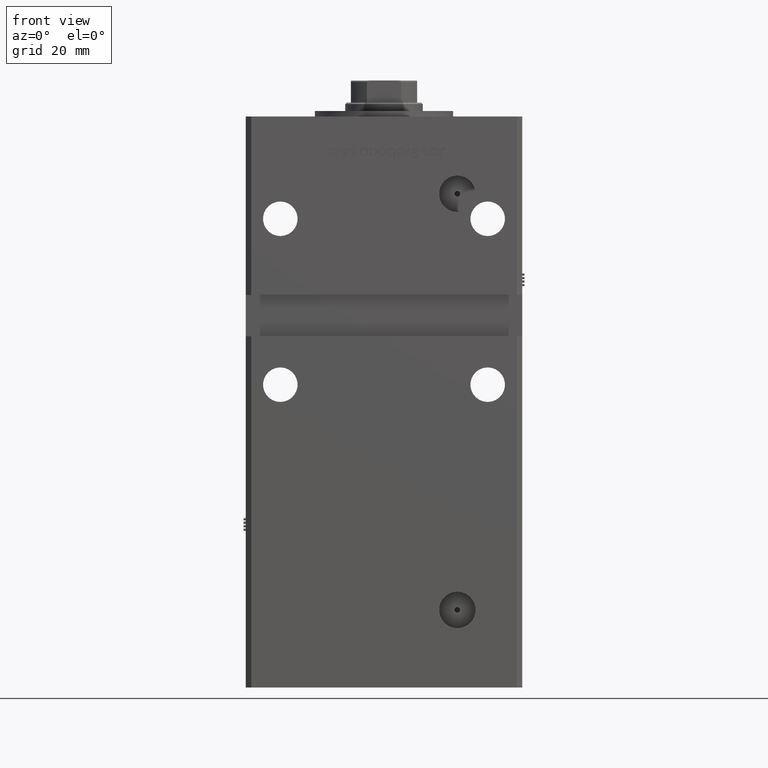
[diagram: clean part render]
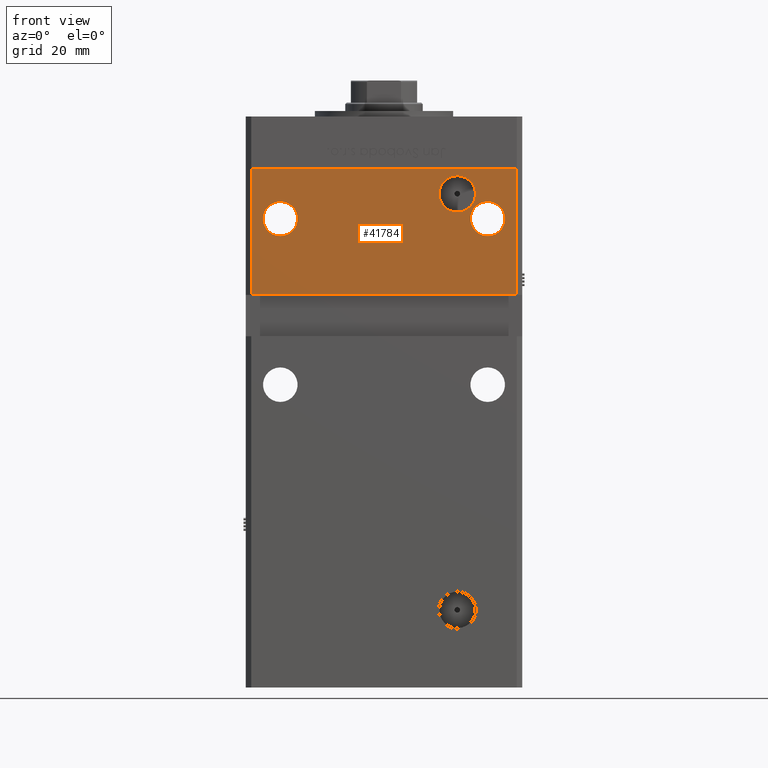
[diagram: same view with one face highlighted and labeled with its STEP entity id]
A machine part, front view. The second image highlights one B-rep face of the part: STEP entity #41784.
In plain terms, the highlighted planar face has unit normal (0, 1, 0).
Its self-contained STEP definition (entity closure, byte-faithful):
#332 = AXIS2_PLACEMENT_3D ( 'NONE', #47815, #42408, #3348 ) ;
#601 = CARTESIAN_POINT ( 'NONE',  ( 37.50000000000000000, -43.50000000000000000, 144.2500000000000284 ) ) ;
#736 = CIRCLE ( 'NONE', #45335, 6.580000000000002736 ) ;
#2421 = CARTESIAN_POINT ( 'NONE',  ( 37.50000000000000000, -43.50000000000000000, 150.5000000000000284 ) ) ;
#3348 = DIRECTION ( 'NONE',  ( 0.000000000000000000, 0.000000000000000000, -1.000000000000000000 ) ) ;
#3960 = VERTEX_POINT ( 'NONE', #40615 ) ;
#4363 = CARTESIAN_POINT ( 'NONE',  ( -37.50000000000000000, -43.50000000000000000, 150.5000000000000284 ) ) ;
#4539 = CIRCLE ( 'NONE', #55539, 6.250000000000005329 ) ;
#5968 = ORIENTED_EDGE ( 'NONE', *, *, #8190, .T. ) ;
#7307 = EDGE_LOOP ( 'NONE', ( #10042, #50428, #18265, #41049 ) ) ;
#7469 = EDGE_CURVE ( 'NONE', #42286, #55351, #55959, .T. ) ;
#7784 = CIRCLE ( 'NONE', #332, 6.580000000000002736 ) ;
#8098 = DIRECTION ( 'NONE',  ( -0.000000000000000000, -0.000000000000000000, -1.000000000000000000 ) ) ;
#8190 = EDGE_CURVE ( 'NONE', #3960, #13209, #7784, .T. ) ;
#8263 = ORIENTED_EDGE ( 'NONE', *, *, #15175, .T. ) ;
#8727 = DIRECTION ( 'NONE',  ( 0.000000000000000000, -0.000000000000000000, 1.000000000000000000 ) ) ;
#9305 = PLANE ( 'NONE',  #30686 ) ;
#9656 = VERTEX_POINT ( 'NONE', #21338 ) ;
#9850 = CARTESIAN_POINT ( 'NONE',  ( -47.99999999999998579, -43.50000000000000000, 168.5000000000000000 ) ) ;
#9886 = EDGE_LOOP ( 'NONE', ( #5968, #33859 ) ) ;
#10042 = ORIENTED_EDGE ( 'NONE', *, *, #40687, .T. ) ;
#10422 = EDGE_LOOP ( 'NONE', ( #12467, #8263 ) ) ;
#11053 = VERTEX_POINT ( 'NONE', #601 ) ;
#11616 = CARTESIAN_POINT ( 'NONE',  ( -47.99999999999998579, -43.50000000000000000, 168.5000000000000000 ) ) ;
#12467 = ORIENTED_EDGE ( 'NONE', *, *, #54527, .T. ) ;
#12557 = DIRECTION ( 'NONE',  ( -0.000000000000000000, 1.000000000000000000, -0.000000000000000000 ) ) ;
#12769 = ORIENTED_EDGE ( 'NONE', *, *, #35851, .T. ) ;
#13209 = VERTEX_POINT ( 'NONE', #41250 ) ;
#13568 = FACE_OUTER_BOUND ( 'NONE', #7307, .T. ) ;
#13612 = VECTOR ( 'NONE', #16162, 1000.000000000000000 ) ;
#13747 = CARTESIAN_POINT ( 'NONE',  ( -47.99999999999998579, -43.50000000000000000, 123.0000000000000000 ) ) ;
#15156 = VECTOR ( 'NONE', #8098, 1000.000000000000000 ) ;
#15175 = EDGE_CURVE ( 'NONE', #11053, #9656, #24274, .T. ) ;
#15199 = AXIS2_PLACEMENT_3D ( 'NONE', #34139, #25595, #21046 ) ;
#16162 = DIRECTION ( 'NONE',  ( 1.000000000000000000, 0.000000000000000000, 0.000000000000000000 ) ) ;
#16473 = CARTESIAN_POINT ( 'NONE',  ( -37.50000000000000000, -43.50000000000000000, 144.2500000000000284 ) ) ;
#16561 = EDGE_CURVE ( 'NONE', #43713, #42286, #44103, .T. ) ;
#17029 = CIRCLE ( 'NONE', #15199, 6.250000000000005329 ) ;
#17562 = DIRECTION ( 'NONE',  ( 0.000000000000000000, 1.000000000000000000, 0.000000000000000000 ) ) ;
#18265 = ORIENTED_EDGE ( 'NONE', *, *, #16561, .F. ) ;
#19153 = CARTESIAN_POINT ( 'NONE',  ( 47.99999999999998579, -43.50000000000000000, 168.5000000000000000 ) ) ;
#19330 = LINE ( 'NONE', #36702, #15156 ) ;
#20181 = AXIS2_PLACEMENT_3D ( 'NONE', #4363, #32013, #40014 ) ;
#20376 = DIRECTION ( 'NONE',  ( 0.000000000000000000, 0.000000000000000000, 1.000000000000000000 ) ) ;
#20565 = CARTESIAN_POINT ( 'NONE',  ( 26.49999999999997868, -43.50000000000000000, 159.5000000000000568 ) ) ;
#20756 = LINE ( 'NONE', #11616, #13612 ) ;
#21046 = DIRECTION ( 'NONE',  ( 0.000000000000000000, 0.000000000000000000, 1.000000000000000000 ) ) ;
#21338 = CARTESIAN_POINT ( 'NONE',  ( 37.50000000000000000, -43.50000000000000000, 156.7500000000000284 ) ) ;
#23853 = EDGE_CURVE ( 'NONE', #13209, #3960, #736, .T. ) ;
#24274 = CIRCLE ( 'NONE', #39726, 6.250000000000005329 ) ;
#25179 = DIRECTION ( 'NONE',  ( -1.000000000000000000, -0.000000000000000000, -0.000000000000000000 ) ) ;
#25595 = DIRECTION ( 'NONE',  ( 0.000000000000000000, 1.000000000000000000, 0.000000000000000000 ) ) ;
#25692 = DIRECTION ( 'NONE',  ( 0.000000000000000000, 0.000000000000000000, -1.000000000000000000 ) ) ;
#26017 = DIRECTION ( 'NONE',  ( 0.000000000000000000, 1.000000000000000000, 0.000000000000000000 ) ) ;
#26236 = VERTEX_POINT ( 'NONE', #48501 ) ;
#26977 = FACE_BOUND ( 'NONE', #9886, .T. ) ;
#29187 = CARTESIAN_POINT ( 'NONE',  ( -49.99999999999998579, -43.50000000000000000, 123.0000000000000000 ) ) ;
#30421 = FACE_BOUND ( 'NONE', #34297, .T. ) ;
#30686 = AXIS2_PLACEMENT_3D ( 'NONE', #9850, #17562, #8727 ) ;
#31077 = CARTESIAN_POINT ( 'NONE',  ( 47.99999999999998579, -43.50000000000000000, 123.0000000000000000 ) ) ;
#32013 = DIRECTION ( 'NONE',  ( 0.000000000000000000, 1.000000000000000000, 0.000000000000000000 ) ) ;
#32362 = VECTOR ( 'NONE', #44949, 1000.000000000000000 ) ;
#33859 = ORIENTED_EDGE ( 'NONE', *, *, #23853, .T. ) ;
#34139 = CARTESIAN_POINT ( 'NONE',  ( -37.50000000000000000, -43.50000000000000000, 150.5000000000000284 ) ) ;
#34212 = CARTESIAN_POINT ( 'NONE',  ( -37.50000000000000000, -43.50000000000000000, 156.7500000000000284 ) ) ;
#34297 = EDGE_LOOP ( 'NONE', ( #37736, #12769 ) ) ;
#35695 = DIRECTION ( 'NONE',  ( 0.000000000000000000, 0.000000000000000000, 1.000000000000000000 ) ) ;
#35851 = EDGE_CURVE ( 'NONE', #44071, #49810, #52053, .T. ) ;
#36093 = CARTESIAN_POINT ( 'NONE',  ( 47.99999999999998579, -43.50000000000000000, 168.5000000000000000 ) ) ;
#36530 = VECTOR ( 'NONE', #25179, 1000.000000000000000 ) ;
#36702 = CARTESIAN_POINT ( 'NONE',  ( -47.99999999999998579, -43.50000000000000000, 168.5000000000000000 ) ) ;
#37736 = ORIENTED_EDGE ( 'NONE', *, *, #42496, .T. ) ;
#38026 = DIRECTION ( 'NONE',  ( 0.000000000000000000, 1.000000000000000000, 0.000000000000000000 ) ) ;
#39726 = AXIS2_PLACEMENT_3D ( 'NONE', #2421, #38026, #20376 ) ;
#40014 = DIRECTION ( 'NONE',  ( 0.000000000000000000, 0.000000000000000000, 1.000000000000000000 ) ) ;
#40615 = CARTESIAN_POINT ( 'NONE',  ( 26.49999999999997868, -43.50000000000000000, 152.9200000000000443 ) ) ;
#40687 = EDGE_CURVE ( 'NONE', #26236, #55351, #19330, .T. ) ;
#41049 = ORIENTED_EDGE ( 'NONE', *, *, #53061, .F. ) ;
#41250 = CARTESIAN_POINT ( 'NONE',  ( 26.49999999999997868, -43.50000000000000000, 166.0800000000000693 ) ) ;
#41784 = ADVANCED_FACE ( 'NONE', ( #43811, #30421, #13568, #26977 ), #9305, .F. ) ;
#42286 = VERTEX_POINT ( 'NONE', #31077 ) ;
#42408 = DIRECTION ( 'NONE',  ( -0.000000000000000000, 1.000000000000000000, -0.000000000000000000 ) ) ;
#42496 = EDGE_CURVE ( 'NONE', #49810, #44071, #17029, .T. ) ;
#43404 = CARTESIAN_POINT ( 'NONE',  ( 37.50000000000000000, -43.50000000000000000, 150.5000000000000284 ) ) ;
#43713 = VERTEX_POINT ( 'NONE', #19153 ) ;
#43811 = FACE_BOUND ( 'NONE', #10422, .T. ) ;
#44071 = VERTEX_POINT ( 'NONE', #16473 ) ;
#44103 = LINE ( 'NONE', #36093, #32362 ) ;
#44949 = DIRECTION ( 'NONE',  ( -0.000000000000000000, -0.000000000000000000, -1.000000000000000000 ) ) ;
#45335 = AXIS2_PLACEMENT_3D ( 'NONE', #20565, #12557, #25692 ) ;
#47815 = CARTESIAN_POINT ( 'NONE',  ( 26.49999999999997868, -43.50000000000000000, 159.5000000000000568 ) ) ;
#48501 = CARTESIAN_POINT ( 'NONE',  ( -47.99999999999998579, -43.50000000000000000, 168.5000000000000000 ) ) ;
#49810 = VERTEX_POINT ( 'NONE', #34212 ) ;
#50428 = ORIENTED_EDGE ( 'NONE', *, *, #7469, .F. ) ;
#52053 = CIRCLE ( 'NONE', #20181, 6.250000000000005329 ) ;
#53061 = EDGE_CURVE ( 'NONE', #26236, #43713, #20756, .T. ) ;
#54527 = EDGE_CURVE ( 'NONE', #9656, #11053, #4539, .T. ) ;
#55351 = VERTEX_POINT ( 'NONE', #13747 ) ;
#55539 = AXIS2_PLACEMENT_3D ( 'NONE', #43404, #26017, #35695 ) ;
#55959 = LINE ( 'NONE', #29187, #36530 ) ;